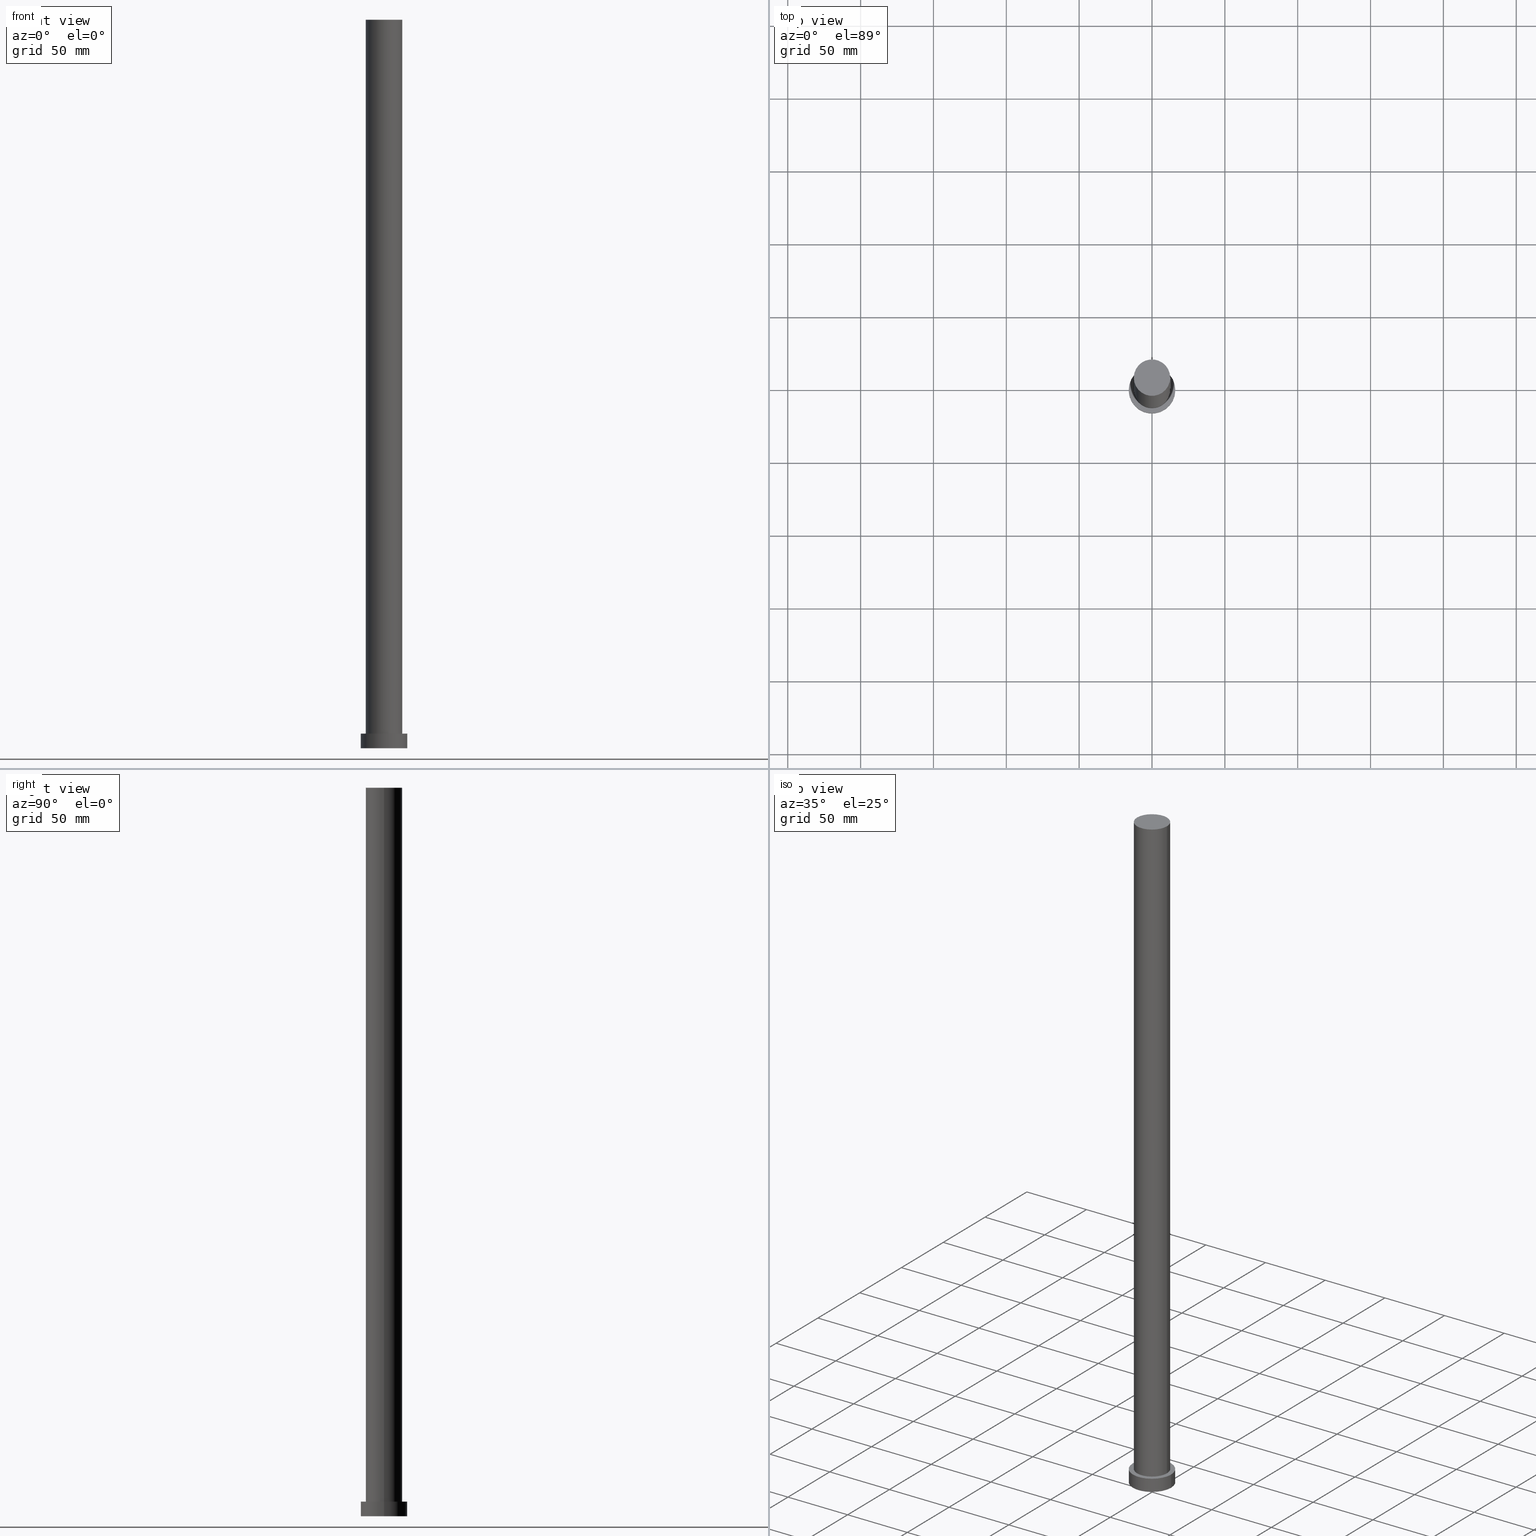
[diagram: canonical four-view strip — front | top / right | iso, engineering-drawing reading convention]
A machine part, canonical four-view strip (front | top / right | iso — engineering-drawing reading convention). The complete STEP part file that produces these views, byte-faithful:
ISO-10303-21;
HEADER;
FILE_DESCRIPTION (( 'STEP AP203' ),
    '1' );
FILE_NAME ('57d4.STEP',
    '2026-02-06T12:34:24',
    ( '' ),
    ( '' ),
    'SwSTEP 2.0',
    'SolidWorks 2019',
    '' );
FILE_SCHEMA (( 'CONFIG_CONTROL_DESIGN' ));
ENDSEC;

DATA;
#1 = DIRECTION ( 'NONE',  ( 1.000000000000000000, 0.000000000000000000, 0.000000000000000000 ) ) ;
#2 = MECHANICAL_CONTEXT ( 'NONE', #192, 'mechanical' ) ;
#3 = ORIENTED_EDGE ( 'NONE', *, *, #13, .F. ) ;
#4 = CARTESIAN_POINT ( 'NONE',  ( 0.000000000000000000, 0.000000000000000000, 500.0000000000000000 ) ) ;
#5 = EDGE_LOOP ( 'NONE', ( #187, #116, #175, #239 ) ) ;
#6 =( NAMED_UNIT ( * ) SI_UNIT ( $, .STERADIAN. ) SOLID_ANGLE_UNIT ( ) );
#7 = VERTEX_POINT ( 'NONE', #95 ) ;
#8 = PERSON_AND_ORGANIZATION ( #174, #214 ) ;
#9 = PERSON_AND_ORGANIZATION ( #174, #214 ) ;
#10 = AXIS2_PLACEMENT_3D ( 'NONE', #244, #221, #129 ) ;
#11 = CC_DESIGN_PERSON_AND_ORGANIZATION_ASSIGNMENT ( #8, #150, ( #232 ) ) ;
#12 = PERSON_AND_ORGANIZATION_ROLE ( 'creator' ) ;
#13 = EDGE_CURVE ( 'NONE', #17, #38, #29, .T. ) ;
#14 = AXIS2_PLACEMENT_3D ( 'NONE', #94, #106, #115 ) ;
#15 = ORIENTED_EDGE ( 'NONE', *, *, #121, .F. ) ;
#16 = VECTOR ( 'NONE', #73, 1000.000000000000000 ) ;
#17 = VERTEX_POINT ( 'NONE', #146 ) ;
#18 = DIRECTION ( 'NONE',  ( 0.000000000000000000, 0.000000000000000000, 1.000000000000000000 ) ) ;
#19 = DIRECTION ( 'NONE',  ( -0.000000000000000000, -0.000000000000000000, -1.000000000000000000 ) ) ;
#20 = ADVANCED_FACE ( 'NONE', ( #90 ), #128, .T. ) ;
#21 = FACE_OUTER_BOUND ( 'NONE', #27, .T. ) ;
#22 = CARTESIAN_POINT ( 'NONE',  ( 16.00000000000000000, 1.959434878635765131E-15, 10.00000000000000000 ) ) ;
#23 = FACE_OUTER_BOUND ( 'NONE', #137, .T. ) ;
#24 =( LENGTH_UNIT ( ) NAMED_UNIT ( * ) SI_UNIT ( .MILLI., .METRE. ) );
#25 = DIRECTION ( 'NONE',  ( 1.000000000000000000, 0.000000000000000000, -0.000000000000000000 ) ) ;
#26 = DIRECTION ( 'NONE',  ( -0.000000000000000000, -0.000000000000000000, -1.000000000000000000 ) ) ;
#27 = EDGE_LOOP ( 'NONE', ( #209, #15, #103, #149 ) ) ;
#28 = ADVANCED_BREP_SHAPE_REPRESENTATION ( '57d4', ( #66, #31 ), #63 ) ;
#29 = CIRCLE ( 'NONE', #10, 12.50000000000000000 ) ;
#30 = VERTEX_POINT ( 'NONE', #199 ) ;
#31 = AXIS2_PLACEMENT_3D ( 'NONE', #164, #238, #68 ) ;
#32 = ORIENTED_EDGE ( 'NONE', *, *, #121, .T. ) ;
#33 = APPROVAL_DATE_TIME ( #203, #40 ) ;
#34 = ADVANCED_FACE ( 'NONE', ( #131 ), #204, .T. ) ;
#35 = PERSON_AND_ORGANIZATION ( #174, #214 ) ;
#36 = COORDINATED_UNIVERSAL_TIME_OFFSET ( 1, 0, .AHEAD. ) ;
#37 = CIRCLE ( 'NONE', #173, 16.00000000000000000 ) ;
#38 = VERTEX_POINT ( 'NONE', #229 ) ;
#39 = APPLICATION_CONTEXT ( 'configuration controlled 3d designs of mechanical parts and assemblies' ) ;
#40 = APPROVAL ( #96, 'NEUR�EN�' ) ;
#41 = DESIGN_CONTEXT ( 'detailed design', #39, 'design' ) ;
#42 = PLANE ( 'NONE',  #112 ) ;
#43 = AXIS2_PLACEMENT_3D ( 'NONE', #143, #197, #233 ) ;
#44 = CARTESIAN_POINT ( 'NONE',  ( 12.50000000000000000, 1.530808498934191521E-15, 500.0000000000000000 ) ) ;
#45 = FACE_BOUND ( 'NONE', #208, .T. ) ;
#46 = APPLICATION_PROTOCOL_DEFINITION ( 'international standard', 'config_control_design', 1994, #39 ) ;
#47 = AXIS2_PLACEMENT_3D ( 'NONE', #83, #19, #163 ) ;
#48 = DIRECTION ( 'NONE',  ( 1.000000000000000000, 0.000000000000000000, -0.000000000000000000 ) ) ;
#49 = LINE ( 'NONE', #22, #16 ) ;
#50 = ORIENTED_EDGE ( 'NONE', *, *, #255, .F. ) ;
#51 = COORDINATED_UNIVERSAL_TIME_OFFSET ( 1, 0, .AHEAD. ) ;
#52 = ADVANCED_FACE ( 'NONE', ( #21 ), #212, .T. ) ;
#53 = ORIENTED_EDGE ( 'NONE', *, *, #109, .F. ) ;
#54 = PERSON_AND_ORGANIZATION ( #174, #214 ) ;
#55 = EDGE_CURVE ( 'NONE', #148, #17, #220, .T. ) ;
#56 = DIRECTION ( 'NONE',  ( -1.000000000000000000, 0.000000000000000000, 0.000000000000000000 ) ) ;
#57 = SECURITY_CLASSIFICATION_LEVEL ( 'unclassified' ) ;
#58 = CIRCLE ( 'NONE', #14, 12.50000000000000000 ) ;
#59 = ORIENTED_EDGE ( 'NONE', *, *, #61, .F. ) ;
#60 = APPROVAL_PERSON_ORGANIZATION ( #9, #141, #130 ) ;
#61 = EDGE_CURVE ( 'NONE', #74, #30, #64, .T. ) ;
#62 = LINE ( 'NONE', #44, #145 ) ;
#63 =( GEOMETRIC_REPRESENTATION_CONTEXT ( 3 ) GLOBAL_UNCERTAINTY_ASSIGNED_CONTEXT ( ( #89 ) ) GLOBAL_UNIT_ASSIGNED_CONTEXT ( ( #24, #234, #6 ) ) REPRESENTATION_CONTEXT ( 'NONE', 'WORKASPACE' ) );
#64 = LINE ( 'NONE', #177, #120 ) ;
#65 = DIRECTION ( 'NONE',  ( -0.000000000000000000, -0.000000000000000000, -1.000000000000000000 ) ) ;
#66 = MANIFOLD_SOLID_BREP ( 'P�idat vysunut�m3', #228 ) ;
#67 = DIRECTION ( 'NONE',  ( 0.000000000000000000, 0.000000000000000000, 1.000000000000000000 ) ) ;
#68 = DIRECTION ( 'NONE',  ( 1.000000000000000000, 0.000000000000000000, 0.000000000000000000 ) ) ;
#69 = AXIS2_PLACEMENT_3D ( 'NONE', #235, #217, #48 ) ;
#70 = EDGE_LOOP ( 'NONE', ( #92, #135, #118, #251 ) ) ;
#71 = APPROVAL_STATUS ( 'not_yet_approved' ) ;
#72 = DIRECTION ( 'NONE',  ( -1.000000000000000000, 0.000000000000000000, 0.000000000000000000 ) ) ;
#73 = DIRECTION ( 'NONE',  ( -0.000000000000000000, -0.000000000000000000, -1.000000000000000000 ) ) ;
#74 = VERTEX_POINT ( 'NONE', #138 ) ;
#75 = DATE_AND_TIME ( #247, #171 ) ;
#76 = APPROVAL ( #71, 'NEUR�EN�' ) ;
#77 = DIRECTION ( 'NONE',  ( -0.000000000000000000, -0.000000000000000000, -1.000000000000000000 ) ) ;
#78 = CALENDAR_DATE ( 2026, 6, 2 ) ;
#79 = SHAPE_DEFINITION_REPRESENTATION ( #157, #28 ) ;
#80 = AXIS2_PLACEMENT_3D ( 'NONE', #162, #195, #230 ) ;
#81 = EDGE_LOOP ( 'NONE', ( #32, #200 ) ) ;
#82 = DIRECTION ( 'NONE',  ( 0.000000000000000000, 0.000000000000000000, 1.000000000000000000 ) ) ;
#83 = CARTESIAN_POINT ( 'NONE',  ( 0.000000000000000000, 0.000000000000000000, 500.0000000000000000 ) ) ;
#84 = PLANE ( 'NONE',  #69 ) ;
#85 = CARTESIAN_POINT ( 'NONE',  ( -12.50000000000000000, 0.000000000000000000, 500.0000000000000000 ) ) ;
#86 = CC_DESIGN_DATE_AND_TIME_ASSIGNMENT ( #75, #205, ( #98 ) ) ;
#87 = CC_DESIGN_SECURITY_CLASSIFICATION ( #98, ( #232 ) ) ;
#88 = APPROVAL_PERSON_ORGANIZATION ( #54, #40, #155 ) ;
#89 = UNCERTAINTY_MEASURE_WITH_UNIT (LENGTH_MEASURE( 1.000000000000000082E-05 ), #24, 'distance_accuracy_value', 'NONE');
#90 = FACE_OUTER_BOUND ( 'NONE', #5, .T. ) ;
#91 = CARTESIAN_POINT ( 'NONE',  ( 16.00000000000000000, 1.959434878635765131E-15, 0.000000000000000000 ) ) ;
#92 = ORIENTED_EDGE ( 'NONE', *, *, #161, .F. ) ;
#93 = EDGE_CURVE ( 'NONE', #74, #7, #213, .T. ) ;
#94 = CARTESIAN_POINT ( 'NONE',  ( 0.000000000000000000, 0.000000000000000000, 10.00000000000000000 ) ) ;
#95 = CARTESIAN_POINT ( 'NONE',  ( 16.00000000000000000, 1.959434878635765131E-15, 10.00000000000000000 ) ) ;
#96 = APPROVAL_STATUS ( 'not_yet_approved' ) ;
#97 = APPROVAL_STATUS ( 'not_yet_approved' ) ;
#98 = SECURITY_CLASSIFICATION ( '', '', #57 ) ;
#99 = CC_DESIGN_APPROVAL ( #76, ( #194 ) ) ;
#100 = PRODUCT ( '57d4', '57d4', '', ( #2 ) ) ;
#101 = LOCAL_TIME ( 13, 34, 24.00000000000000000, #189 ) ;
#102 = AXIS2_PLACEMENT_3D ( 'NONE', #181, #182, #180 ) ;
#103 = ORIENTED_EDGE ( 'NONE', *, *, #55, .T. ) ;
#104 = DIRECTION ( 'NONE',  ( 1.000000000000000000, 0.000000000000000000, 0.000000000000000000 ) ) ;
#105 = FACE_OUTER_BOUND ( 'NONE', #81, .T. ) ;
#106 = DIRECTION ( 'NONE',  ( 0.000000000000000000, 0.000000000000000000, 1.000000000000000000 ) ) ;
#107 = CIRCLE ( 'NONE', #43, 12.50000000000000000 ) ;
#108 = PLANE ( 'NONE',  #102 ) ;
#109 = EDGE_CURVE ( 'NONE', #7, #74, #210, .T. ) ;
#110 = CARTESIAN_POINT ( 'NONE',  ( 12.50000000000000000, 1.530808498934191521E-15, 500.0000000000000000 ) ) ;
#111 = CARTESIAN_POINT ( 'NONE',  ( 0.000000000000000000, 0.000000000000000000, 10.00000000000000000 ) ) ;
#112 = AXIS2_PLACEMENT_3D ( 'NONE', #196, #18, #25 ) ;
#113 = LOCAL_TIME ( 13, 34, 24.00000000000000000, #117 ) ;
#114 = CARTESIAN_POINT ( 'NONE',  ( 0.000000000000000000, 0.000000000000000000, 10.00000000000000000 ) ) ;
#115 = DIRECTION ( 'NONE',  ( 1.000000000000000000, 0.000000000000000000, 0.000000000000000000 ) ) ;
#116 = ORIENTED_EDGE ( 'NONE', *, *, #93, .F. ) ;
#117 = COORDINATED_UNIVERSAL_TIME_OFFSET ( 1, 0, .AHEAD. ) ;
#118 = ORIENTED_EDGE ( 'NONE', *, *, #255, .T. ) ;
#119 = APPROVAL_DATE_TIME ( #245, #76 ) ;
#120 = VECTOR ( 'NONE', #65, 1000.000000000000000 ) ;
#121 = EDGE_CURVE ( 'NONE', #148, #152, #160, .T. ) ;
#122 = CARTESIAN_POINT ( 'NONE',  ( 0.000000000000000000, 0.000000000000000000, 10.00000000000000000 ) ) ;
#123 = AXIS2_PLACEMENT_3D ( 'NONE', #122, #82, #1 ) ;
#124 = CARTESIAN_POINT ( 'NONE',  ( 0.000000000000000000, 0.000000000000000000, 0.000000000000000000 ) ) ;
#125 = ADVANCED_FACE ( 'NONE', ( #105 ), #42, .T. ) ;
#126 = CC_DESIGN_APPROVAL ( #141, ( #232 ) ) ;
#127 = APPLICATION_PROTOCOL_DEFINITION ( 'international standard', 'config_control_design', 1994, #192 ) ;
#128 = CYLINDRICAL_SURFACE ( 'NONE', #253, 16.00000000000000000 ) ;
#129 = DIRECTION ( 'NONE',  ( 1.000000000000000000, 0.000000000000000000, 0.000000000000000000 ) ) ;
#130 = APPROVAL_ROLE ( '' ) ;
#131 = FACE_OUTER_BOUND ( 'NONE', #156, .T. ) ;
#132 = PERSON_AND_ORGANIZATION_ROLE ( 'classification_officer' ) ;
#133 = CC_DESIGN_PERSON_AND_ORGANIZATION_ASSIGNMENT ( #35, #132, ( #98 ) ) ;
#134 = PERSON_AND_ORGANIZATION ( #174, #214 ) ;
#135 = ORIENTED_EDGE ( 'NONE', *, *, #139, .T. ) ;
#136 = EDGE_CURVE ( 'NONE', #30, #241, #250, .T. ) ;
#137 = EDGE_LOOP ( 'NONE', ( #227, #186 ) ) ;
#138 = CARTESIAN_POINT ( 'NONE',  ( -16.00000000000000000, 0.000000000000000000, 10.00000000000000000 ) ) ;
#139 = EDGE_CURVE ( 'NONE', #152, #38, #62, .T. ) ;
#140 = CARTESIAN_POINT ( 'NONE',  ( 0.000000000000000000, 0.000000000000000000, 10.00000000000000000 ) ) ;
#141 = APPROVAL ( #97, 'NEUR�EN�' ) ;
#142 = DIRECTION ( 'NONE',  ( 1.000000000000000000, 0.000000000000000000, 0.000000000000000000 ) ) ;
#143 = CARTESIAN_POINT ( 'NONE',  ( 0.000000000000000000, 0.000000000000000000, 500.0000000000000000 ) ) ;
#144 = CYLINDRICAL_SURFACE ( 'NONE', #167, 12.50000000000000000 ) ;
#145 = VECTOR ( 'NONE', #252, 1000.000000000000000 ) ;
#146 = CARTESIAN_POINT ( 'NONE',  ( -12.50000000000000000, 0.000000000000000000, 10.00000000000000000 ) ) ;
#147 = APPROVAL_ROLE ( '' ) ;
#148 = VERTEX_POINT ( 'NONE', #159 ) ;
#149 = ORIENTED_EDGE ( 'NONE', *, *, #13, .T. ) ;
#150 = PERSON_AND_ORGANIZATION_ROLE ( 'design_supplier' ) ;
#151 = VECTOR ( 'NONE', #198, 1000.000000000000000 ) ;
#152 = VERTEX_POINT ( 'NONE', #110 ) ;
#153 = APPROVAL_DATE_TIME ( #191, #141 ) ;
#154 = CC_DESIGN_DATE_AND_TIME_ASSIGNMENT ( #226, #206, ( #194 ) ) ;
#155 = APPROVAL_ROLE ( '' ) ;
#156 = EDGE_LOOP ( 'NONE', ( #53, #165, #224, #59 ) ) ;
#157 = PRODUCT_DEFINITION_SHAPE ( 'NONE', 'NONE',  #194 ) ;
#158 = CC_DESIGN_PERSON_AND_ORGANIZATION_ASSIGNMENT ( #242, #12, ( #232 ) ) ;
#159 = CARTESIAN_POINT ( 'NONE',  ( -12.50000000000000000, 0.000000000000000000, 500.0000000000000000 ) ) ;
#160 = CIRCLE ( 'NONE', #80, 12.50000000000000000 ) ;
#161 = EDGE_CURVE ( 'NONE', #152, #148, #107, .T. ) ;
#162 = CARTESIAN_POINT ( 'NONE',  ( 0.000000000000000000, 0.000000000000000000, 500.0000000000000000 ) ) ;
#163 = DIRECTION ( 'NONE',  ( -1.000000000000000000, 0.000000000000000000, 0.000000000000000000 ) ) ;
#164 = CARTESIAN_POINT ( 'NONE',  ( 0.000000000000000000, 0.000000000000000000, 0.000000000000000000 ) ) ;
#165 = ORIENTED_EDGE ( 'NONE', *, *, #236, .T. ) ;
#166 = PERSON_AND_ORGANIZATION ( #174, #214 ) ;
#167 = AXIS2_PLACEMENT_3D ( 'NONE', #4, #26, #183 ) ;
#168 = DIRECTION ( 'NONE',  ( -0.000000000000000000, -0.000000000000000000, -1.000000000000000000 ) ) ;
#169 = CALENDAR_DATE ( 2026, 6, 2 ) ;
#170 = COORDINATED_UNIVERSAL_TIME_OFFSET ( 1, 0, .AHEAD. ) ;
#171 = LOCAL_TIME ( 13, 34, 24.00000000000000000, #36 ) ;
#172 = CC_DESIGN_PERSON_AND_ORGANIZATION_ASSIGNMENT ( #166, #240, ( #100 ) ) ;
#173 = AXIS2_PLACEMENT_3D ( 'NONE', #124, #178, #142 ) ;
#174 = PERSON ( 'NEUR�EN�', 'NEUR�EN�', 'NEUR�EN�', ('NEUR�EN�'), ('NEUR�EN�'), ('NEUR�EN�') ) ;
#175 = ORIENTED_EDGE ( 'NONE', *, *, #61, .T. ) ;
#176 = EDGE_CURVE ( 'NONE', #241, #30, #37, .T. ) ;
#177 = CARTESIAN_POINT ( 'NONE',  ( -16.00000000000000000, 0.000000000000000000, 10.00000000000000000 ) ) ;
#178 = DIRECTION ( 'NONE',  ( 0.000000000000000000, 0.000000000000000000, 1.000000000000000000 ) ) ;
#179 = AXIS2_PLACEMENT_3D ( 'NONE', #140, #237, #215 ) ;
#180 = DIRECTION ( 'NONE',  ( 1.000000000000000000, 0.000000000000000000, -0.000000000000000000 ) ) ;
#181 = CARTESIAN_POINT ( 'NONE',  ( 0.000000000000000000, 0.000000000000000000, 10.00000000000000000 ) ) ;
#182 = DIRECTION ( 'NONE',  ( 0.000000000000000000, 0.000000000000000000, 1.000000000000000000 ) ) ;
#183 = DIRECTION ( 'NONE',  ( -1.000000000000000000, 0.000000000000000000, 0.000000000000000000 ) ) ;
#184 = LOCAL_TIME ( 13, 34, 24.00000000000000000, #170 ) ;
#185 = ORIENTED_EDGE ( 'NONE', *, *, #136, .F. ) ;
#186 = ORIENTED_EDGE ( 'NONE', *, *, #109, .T. ) ;
#187 = ORIENTED_EDGE ( 'NONE', *, *, #236, .F. ) ;
#188 = CC_DESIGN_PERSON_AND_ORGANIZATION_ASSIGNMENT ( #134, #223, ( #194 ) ) ;
#189 = COORDINATED_UNIVERSAL_TIME_OFFSET ( 1, 0, .AHEAD. ) ;
#190 = AXIS2_PLACEMENT_3D ( 'NONE', #111, #168, #72 ) ;
#191 = DATE_AND_TIME ( #78, #101 ) ;
#192 = APPLICATION_CONTEXT ( 'configuration controlled 3d designs of mechanical parts and assemblies' ) ;
#193 = ORIENTED_EDGE ( 'NONE', *, *, #176, .F. ) ;
#194 = PRODUCT_DEFINITION ( 'NEZN�M�', '', #232, #41 ) ;
#195 = DIRECTION ( 'NONE',  ( 0.000000000000000000, 0.000000000000000000, 1.000000000000000000 ) ) ;
#196 = CARTESIAN_POINT ( 'NONE',  ( 0.000000000000000000, 0.000000000000000000, 500.0000000000000000 ) ) ;
#197 = DIRECTION ( 'NONE',  ( 0.000000000000000000, 0.000000000000000000, 1.000000000000000000 ) ) ;
#198 = DIRECTION ( 'NONE',  ( -0.000000000000000000, -0.000000000000000000, -1.000000000000000000 ) ) ;
#199 = CARTESIAN_POINT ( 'NONE',  ( -16.00000000000000000, 0.000000000000000000, 0.000000000000000000 ) ) ;
#200 = ORIENTED_EDGE ( 'NONE', *, *, #161, .T. ) ;
#201 = LOCAL_TIME ( 13, 34, 24.00000000000000000, #51 ) ;
#202 = EDGE_LOOP ( 'NONE', ( #185, #193 ) ) ;
#203 = DATE_AND_TIME ( #169, #184 ) ;
#204 = CYLINDRICAL_SURFACE ( 'NONE', #190, 16.00000000000000000 ) ;
#205 = DATE_TIME_ROLE ( 'classification_date' ) ;
#206 = DATE_TIME_ROLE ( 'creation_date' ) ;
#207 = CALENDAR_DATE ( 2026, 6, 2 ) ;
#208 = EDGE_LOOP ( 'NONE', ( #3, #50 ) ) ;
#209 = ORIENTED_EDGE ( 'NONE', *, *, #139, .F. ) ;
#210 = CIRCLE ( 'NONE', #179, 16.00000000000000000 ) ;
#211 = ADVANCED_FACE ( 'NONE', ( #254 ), #84, .F. ) ;
#212 = CYLINDRICAL_SURFACE ( 'NONE', #47, 12.50000000000000000 ) ;
#213 = CIRCLE ( 'NONE', #123, 16.00000000000000000 ) ;
#214 = ORGANIZATION ( 'NEUR�EN�', 'NEUR�EN�', '' ) ;
#215 = DIRECTION ( 'NONE',  ( 1.000000000000000000, 0.000000000000000000, 0.000000000000000000 ) ) ;
#216 = CARTESIAN_POINT ( 'NONE',  ( 0.000000000000000000, 0.000000000000000000, 0.000000000000000000 ) ) ;
#217 = DIRECTION ( 'NONE',  ( 0.000000000000000000, 0.000000000000000000, 1.000000000000000000 ) ) ;
#218 = FACE_OUTER_BOUND ( 'NONE', #70, .T. ) ;
#219 = ADVANCED_FACE ( 'NONE', ( #45, #23 ), #108, .T. ) ;
#220 = LINE ( 'NONE', #85, #151 ) ;
#221 = DIRECTION ( 'NONE',  ( 0.000000000000000000, 0.000000000000000000, 1.000000000000000000 ) ) ;
#222 = PERSON_AND_ORGANIZATION ( #174, #214 ) ;
#223 = PERSON_AND_ORGANIZATION_ROLE ( 'creator' ) ;
#224 = ORIENTED_EDGE ( 'NONE', *, *, #176, .T. ) ;
#225 = CALENDAR_DATE ( 2026, 6, 2 ) ;
#226 = DATE_AND_TIME ( #207, #113 ) ;
#227 = ORIENTED_EDGE ( 'NONE', *, *, #93, .T. ) ;
#228 = CLOSED_SHELL ( 'NONE', ( #249, #34, #20, #219, #211, #52, #125 ) ) ;
#229 = CARTESIAN_POINT ( 'NONE',  ( 12.50000000000000000, 1.530808498934191521E-15, 10.00000000000000000 ) ) ;
#230 = DIRECTION ( 'NONE',  ( 1.000000000000000000, 0.000000000000000000, 0.000000000000000000 ) ) ;
#231 = AXIS2_PLACEMENT_3D ( 'NONE', #216, #67, #104 ) ;
#232 = PRODUCT_DEFINITION_FORMATION_WITH_SPECIFIED_SOURCE ( 'LIBOVOLN�', '', #100, .NOT_KNOWN. ) ;
#233 = DIRECTION ( 'NONE',  ( 1.000000000000000000, 0.000000000000000000, 0.000000000000000000 ) ) ;
#234 =( NAMED_UNIT ( * ) PLANE_ANGLE_UNIT ( ) SI_UNIT ( $, .RADIAN. ) );
#235 = CARTESIAN_POINT ( 'NONE',  ( 0.000000000000000000, 0.000000000000000000, 0.000000000000000000 ) ) ;
#236 = EDGE_CURVE ( 'NONE', #7, #241, #49, .T. ) ;
#237 = DIRECTION ( 'NONE',  ( 0.000000000000000000, 0.000000000000000000, 1.000000000000000000 ) ) ;
#238 = DIRECTION ( 'NONE',  ( 0.000000000000000000, 0.000000000000000000, 1.000000000000000000 ) ) ;
#239 = ORIENTED_EDGE ( 'NONE', *, *, #136, .T. ) ;
#240 = PERSON_AND_ORGANIZATION_ROLE ( 'design_owner' ) ;
#241 = VERTEX_POINT ( 'NONE', #91 ) ;
#242 = PERSON_AND_ORGANIZATION ( #174, #214 ) ;
#243 = CC_DESIGN_APPROVAL ( #40, ( #98 ) ) ;
#244 = CARTESIAN_POINT ( 'NONE',  ( 0.000000000000000000, 0.000000000000000000, 10.00000000000000000 ) ) ;
#245 = DATE_AND_TIME ( #225, #201 ) ;
#246 = PRODUCT_RELATED_PRODUCT_CATEGORY ( 'detail', '', ( #100 ) ) ;
#247 = CALENDAR_DATE ( 2026, 6, 2 ) ;
#248 = APPROVAL_PERSON_ORGANIZATION ( #222, #76, #147 ) ;
#249 = ADVANCED_FACE ( 'NONE', ( #218 ), #144, .T. ) ;
#250 = CIRCLE ( 'NONE', #231, 16.00000000000000000 ) ;
#251 = ORIENTED_EDGE ( 'NONE', *, *, #55, .F. ) ;
#252 = DIRECTION ( 'NONE',  ( -0.000000000000000000, -0.000000000000000000, -1.000000000000000000 ) ) ;
#253 = AXIS2_PLACEMENT_3D ( 'NONE', #114, #77, #56 ) ;
#254 = FACE_OUTER_BOUND ( 'NONE', #202, .T. ) ;
#255 = EDGE_CURVE ( 'NONE', #38, #17, #58, .T. ) ;
ENDSEC;
END-ISO-10303-21;
